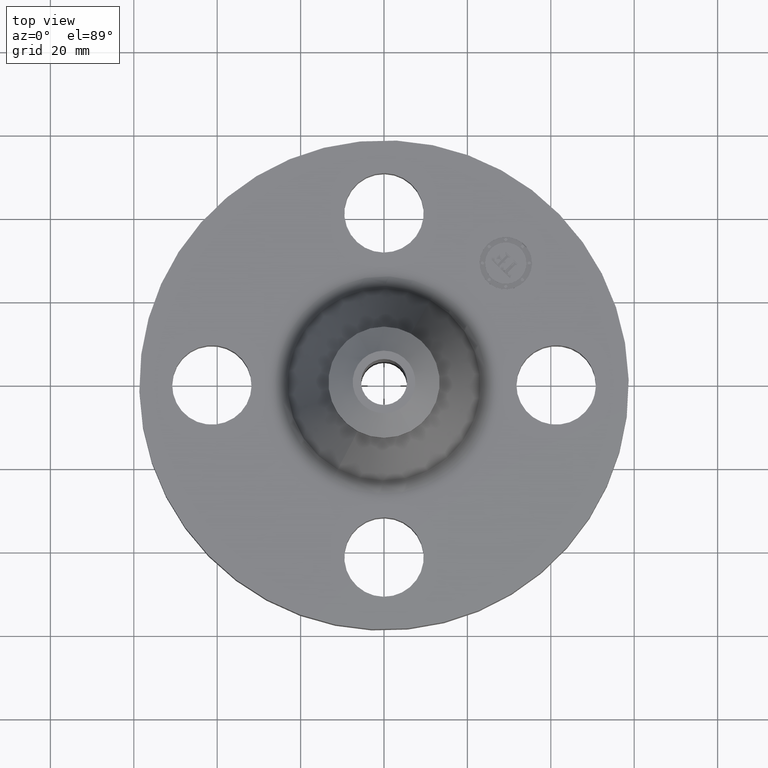
[diagram: clean part render]
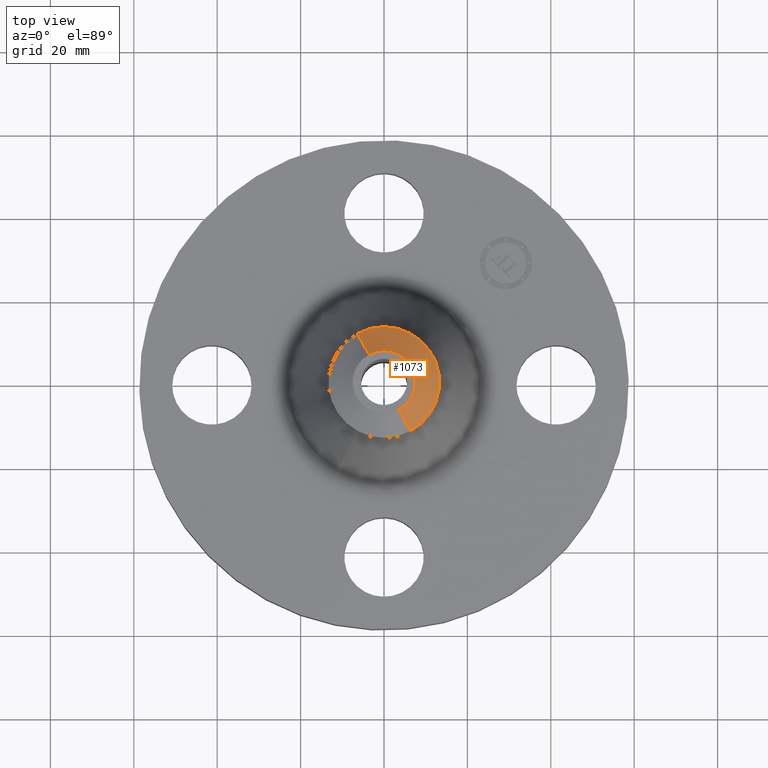
[diagram: same view with one face highlighted and labeled with its STEP entity id]
A machine part, top view. The second image highlights one B-rep face of the part: STEP entity #1073.
In plain terms, the highlighted conical surface has half-angle 52.5 deg.
Its self-contained STEP definition (entity closure, byte-faithful):
#766=AXIS2_PLACEMENT_3D('Circle Axis2P3D',#764,#765,$) ;
#1038=AXIS2_PLACEMENT_3D('Cone Axis2P3D',#1035,#1036,#1037) ;
#1056=AXIS2_PLACEMENT_3D('Circle Axis2P3D',#1054,#1055,$) ;
#1063=AXIS2_PLACEMENT_3D('Circle Axis2P3D',#1061,#1062,$) ;
#764=CARTESIAN_POINT('Axis2P3D Location',(1.28117289306E-011,1.0465679067E-011,2.25000000001)) ;
#768=CARTESIAN_POINT('Vertex',(0.141785384287,-0.259536405056,2.25000000001)) ;
#770=CARTESIAN_POINT('Vertex',(-0.141785384287,0.259536405056,2.25000000001)) ;
#1035=CARTESIAN_POINT('Axis2P3D Location',(0.,0.,2.25000000001)) ;
#1040=CARTESIAN_POINT('Line Origine',(-0.196741896028,0.360133625026,2.1620413678)) ;
#1044=CARTESIAN_POINT('Vertex',(-0.251698407768,0.460730844994,2.07408273559)) ;
#1047=CARTESIAN_POINT('Line Origine',(0.196741896028,-0.360133625026,2.1620413678)) ;
#1051=CARTESIAN_POINT('Vertex',(0.251698407769,-0.460730844996,2.07408273558)) ;
#1054=CARTESIAN_POINT('Axis2P3D Location',(0.,0.,2.07408273558)) ;
#1058=CARTESIAN_POINT('Vertex',(0.251698407768,0.460730844994,2.07408273559)) ;
#1061=CARTESIAN_POINT('Axis2P3D Location',(0.,0.,2.07408273558)) ;
#765=DIRECTION('Axis2P3D Direction',(0.,0.,-0.0393700787402)) ;
#1036=DIRECTION('Axis2P3D Direction',(-0.,-0.,-0.0393700787402)) ;
#1037=DIRECTION('Axis2P3D XDirection',(-0.0188750212049,0.0345504945626,0.)) ;
#1041=DIRECTION('Vector Direction',(-0.014974561121,0.02741075027,-0.023966985394)) ;
#1048=DIRECTION('Vector Direction',(0.014974561121,-0.02741075027,-0.023966985394)) ;
#1055=DIRECTION('Axis2P3D Direction',(-0.,0.,-0.0393700787402)) ;
#1062=DIRECTION('Axis2P3D Direction',(-0.,0.,-0.0393700787402)) ;
#1042=VECTOR('Line Direction',#1041,0.0393700787402) ;
#1049=VECTOR('Line Direction',#1048,0.0393700787402) ;
#1067=ORIENTED_EDGE('',*,*,#1046,.F.) ;
#1068=ORIENTED_EDGE('',*,*,#772,.F.) ;
#1069=ORIENTED_EDGE('',*,*,#1053,.T.) ;
#1070=ORIENTED_EDGE('',*,*,#1060,.T.) ;
#1071=ORIENTED_EDGE('',*,*,#1065,.F.) ;
#1073=ADVANCED_FACE('PartBody',(#1072),#1039,.T.) ;
#767=CIRCLE('generated circle',#766,0.295740157487) ;
#1057=CIRCLE('generated circle',#1056,0.525000000004) ;
#1064=CIRCLE('generated circle',#1063,0.525000000004) ;
#1039=CONICAL_SURFACE('Cone',#1038,0.295740157481,0.916297857297) ;
#772=EDGE_CURVE('',#769,#771,#767,.F.) ;
#1046=EDGE_CURVE('',#771,#1045,#1043,.T.) ;
#1053=EDGE_CURVE('',#769,#1052,#1050,.T.) ;
#1060=EDGE_CURVE('',#1052,#1059,#1057,.F.) ;
#1065=EDGE_CURVE('',#1045,#1059,#1064,.T.) ;
#1066=EDGE_LOOP('',(#1067,#1068,#1069,#1070,#1071)) ;
#1072=FACE_OUTER_BOUND('',#1066,.T.) ;
#1043=LINE('Line',#1040,#1042) ;
#1050=LINE('Line',#1047,#1049) ;
#769=VERTEX_POINT('',#768) ;
#771=VERTEX_POINT('',#770) ;
#1045=VERTEX_POINT('',#1044) ;
#1052=VERTEX_POINT('',#1051) ;
#1059=VERTEX_POINT('',#1058) ;